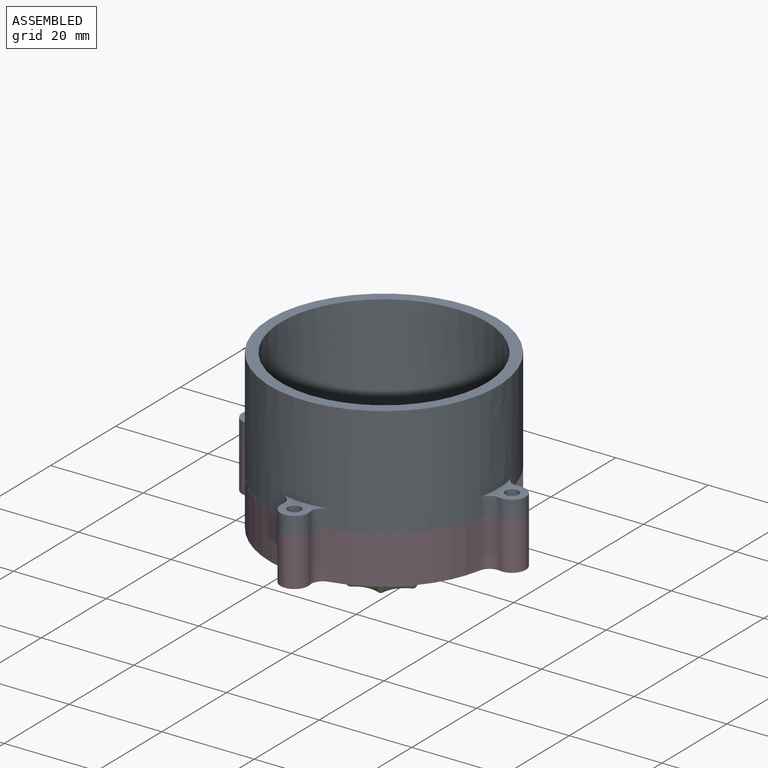
[diagram: assembled view]
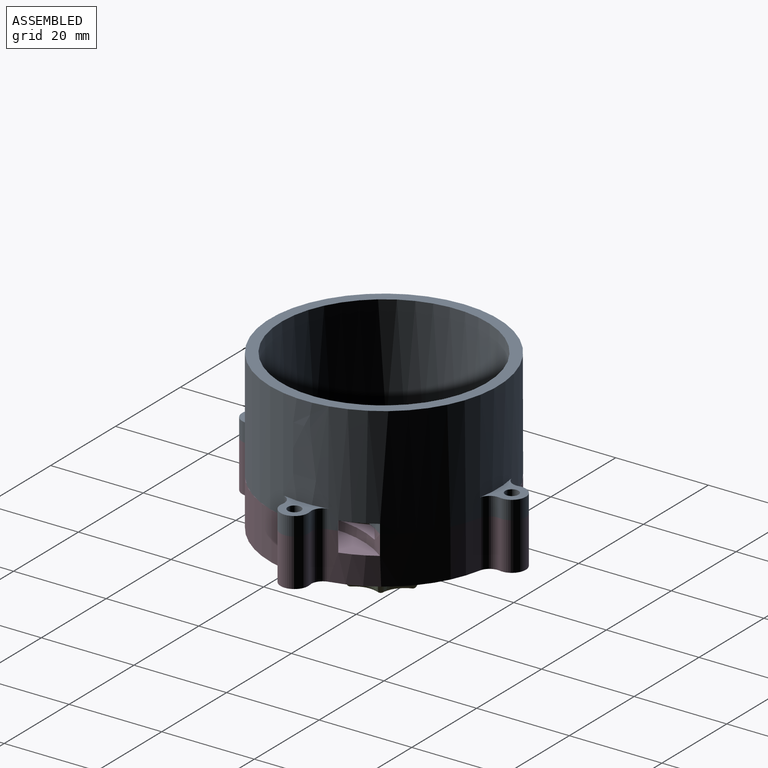
[diagram: assembled view, second angle]
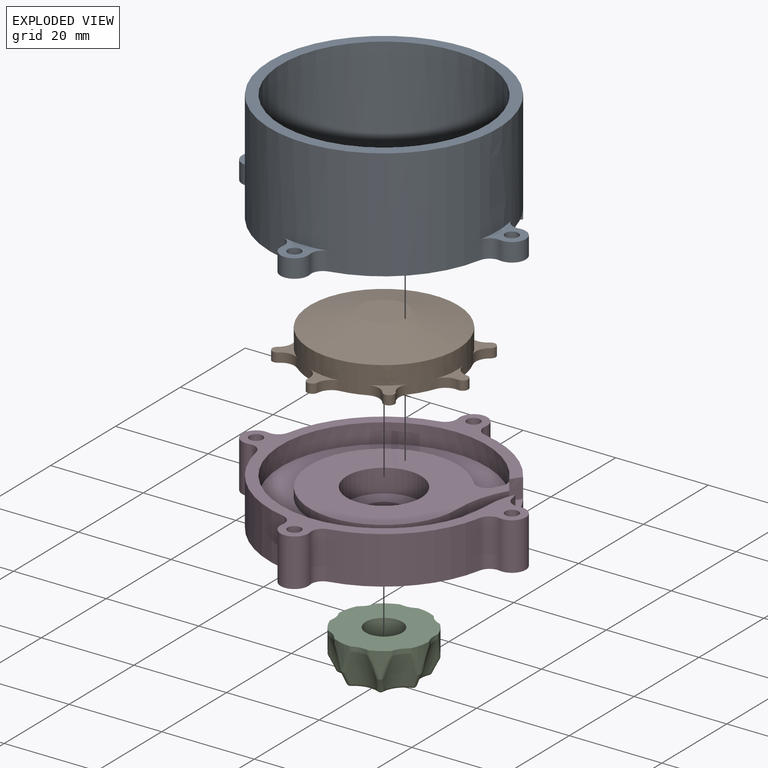
[diagram: exploded view]
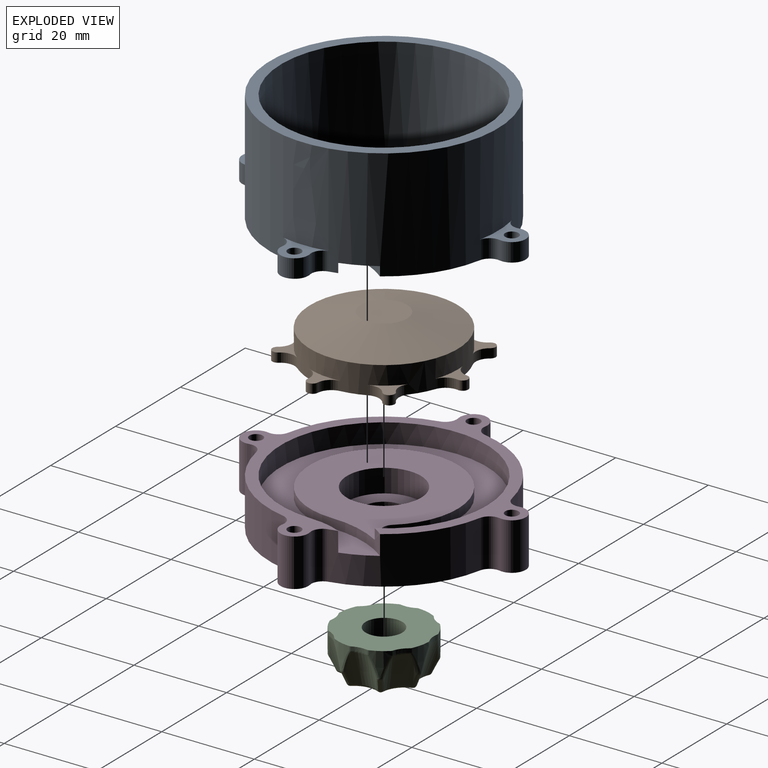
[diagram: exploded view, second angle]
ASSEMBLY  parts=4 mates=7
PART A: 40 faces, bbox 61.2x61.2x24 mm
  f0: plane 9.8x6.49mm, normal (0,0,1), area 27.2mm2, adj f3,f13,f19,f22,f23
  f1: plane 9.8x6.49mm, normal (0,0,1), area 27.2mm2, adj f4,f5,f6,f13,f20
  f2: plane 9.8x6.49mm, normal (0,0,1), area 27.2mm2, adj f10,f11,f12,f21,f32
  f3: cylinder r=2.5mm len=4mm, axis (0,0,-1), area 15.6mm2, adj f0,f13,f23,f25
  f4: cylinder r=2.5mm len=4mm, axis (0,0,-1), area 15.6mm2, adj f1,f5,f13,f25
  f5: cylinder r=3mm len=6mm, axis (0,0,-1), area 42.3mm2, adj f1,f4,f6,f25
  f6: cylinder r=2.5mm len=4mm, axis (0,0,-1), area 15.6mm2, adj f1,f5,f13,f25
  f7: cylinder r=2.5mm len=4mm, axis (0,0,-1), area 15.6mm2, adj f8,f13,f25,f27
  f8: cylinder r=3mm len=6mm, axis (0,0,-1), area 42.3mm2, adj f7,f9,f25,f27
  f9: cylinder r=2.5mm len=4mm, axis (0,0,-1), area 15.6mm2, adj f8,f13,f25,f27
  f10: cylinder r=2.5mm len=4mm, axis (0,0,-1), area 15.6mm2, adj f2,f11,f13,f25
  f11: cylinder r=3mm len=6mm, axis (0,0,-1), area 42.3mm2, adj f2,f10,f12,f25
  f12: cylinder r=2.5mm len=4mm, axis (0,0,-1), area 15.6mm2, adj f2,f11,f13,f25
  f13: cylinder r=24.62mm len=49.23mm, axis (0,0,-1), area 3341.6mm2, adj f0,f1,f3,f4,f6,f7,f9,f10
  f14: cylinder r=15.97mm len=6.7mm, axis (0,0,-1), area 13.8mm2, adj f13,f15,f25,f28
  f15: cylinder r=22.22mm len=44.43mm, axis (0,0,-1), area 2713.7mm2, adj f14,f25,f28,f31,f33,f34,f35,f36
  f16: cylinder r=24.62mm len=7.97mm, axis (0,0,-1), area 34.4mm2, adj f25,f30,f34,f38
  f17: cylinder r=15.97mm len=6.53mm, axis (0,0,-1), area 18.4mm2, adj f25,f26,f28,f29,f30,f38
  f18: cylinder r=22.22mm len=9.29mm, axis (0,0,-1), area 20.6mm2, adj f13,f25,f28,f29
  f19: cylinder r=2.5mm len=4mm, axis (0,0,-1), area 15.6mm2, adj f0,f13,f23,f25
  f20: cylinder r=1.44mm len=4mm, axis (0,0,-1), area 36.1mm2, adj f1,f25
  f21: cylinder r=1.44mm len=4mm, axis (0,0,-1), area 36.1mm2, adj f2,f25
  f22: cylinder r=1.44mm len=4mm, axis (0,0,-1), area 36.1mm2, adj f0,f25
  f23: cylinder r=3mm len=6mm, axis (0,0,-1), area 42.3mm2, adj f0,f3,f19,f25
  f24: cylinder r=1.44mm len=4mm, axis (0,0,-1), area 36.1mm2, adj f25,f27
  f25: plane 61.23x61.23mm, normal (0,0,-1), area 461.6mm2, adj f3,f4,f5,f6,f7,f8,f9,f10
  f26: cylinder r=22.22mm len=7.87mm, axis (0,0,-1), area 12.7mm2, adj f17,f28,f36,f37,f38,f39
  f27: plane 9.8x6.49mm, normal (0,0,1), area 27.2mm2, adj f7,f8,f9,f13,f24
  f28: plane 24.58x8.29mm, normal (0,0,-1), area 114mm2, adj f13,f14,f15,f17,f18,f26,f29,f36
  f29: cylinder r=0.5mm len=2mm, axis (0,0,-1), area 2.7mm2, adj f17,f18,f25,f28
  f30: cylinder r=0.5mm len=4.05mm, axis (0,0,1), area 1.4mm2, adj f16,f17,f25,f38
  f31: extruded ~24.89x20.17mm, area 368.8mm2, adj f15,f33,f35,f38,f39
  f32: extruded ~20x9.8mm, area 197.4mm2, adj f2,f13,f33
  f33: plane 49.23x49.23mm, normal (0,0,1), area 353.1mm2, adj f13,f15,f31,f32
  f34: cylinder r=2.4mm len=12.1mm, axis (0,0,-1), area 30.2mm2, adj f15,f16,f25,f38
  f35: cone r=6mm half-angle=45deg, axis (0,0,1), area 15.6mm2, adj f15,f31,f37,f39
  f36: cone r=6mm half-angle=45deg, axis (0,0,-1), area 5.7mm2, adj f15,f26,f28,f37
  f37: torus R=5.57mm, axis (0,0,-1), area 3.4mm2, adj f15,f26,f35,f36,f39
  f38: bspline ~17.19x11.06mm, area 129.4mm2, adj f15,f16,f17,f26,f30,f31,f34,f39
  f39: bspline ~21.43x19.96mm, area 57.3mm2, adj f26,f31,f35,f37,f38
PART B: 40 faces, bbox 40x40x9 mm
  f0: cylinder r=4mm len=8mm, axis (0,0,-1), area 124mm2, adj f34,f37,f38
  f1: plane 6.05x6.05mm, normal (0,0,1), area 11.8mm2, adj f12,f13,f14,f30
  f2: plane 7.23x4.44mm, normal (0,0,1), area 11.8mm2, adj f15,f16,f17,f30
  f3: plane 6.05x6.05mm, normal (0,0,1), area 11.8mm2, adj f18,f19,f20,f30
  f4: plane 7.23x4.44mm, normal (0,0,1), area 11.8mm2, adj f21,f22,f23,f30
  f5: plane 6.05x6.05mm, normal (0,0,1), area 11.8mm2, adj f24,f25,f26,f30
  f6: plane 7.23x4.44mm, normal (0,0,1), area 11.8mm2, adj f27,f28,f29,f30
  f7: plane 7.23x4.44mm, normal (0,0,1), area 11.8mm2, adj f9,f10,f11,f35
  f8: cylinder r=3.12mm len=3.96mm, axis (0,0,-1), area 8.7mm2, adj f30,f32,f33,f34
  f9: cylinder r=3.12mm len=3.19mm, axis (0,0,-1), area 8.7mm2, adj f7,f10,f30,f34
  f10: cylinder r=1.2mm len=2.4mm, axis (0,0,-1), area 7.8mm2, adj f7,f9,f11,f34
  f11: cylinder r=3.12mm len=3.19mm, axis (0,0,-1), area 8.7mm2, adj f7,f10,f30,f34
  f12: cylinder r=3.12mm len=3.96mm, axis (0,0,-1), area 8.7mm2, adj f1,f13,f30,f34
  f13: cylinder r=1.2mm len=2.09mm, axis (0,0,-1), area 7.8mm2, adj f1,f12,f14,f34
  f14: cylinder r=3.12mm len=3.96mm, axis (0,0,-1), area 8.7mm2, adj f1,f13,f30,f34
  f15: cylinder r=3.12mm len=3.19mm, axis (0,0,-1), area 8.7mm2, adj f2,f16,f30,f34
  f16: cylinder r=1.2mm len=2.4mm, axis (0,0,-1), area 7.8mm2, adj f2,f15,f17,f34
  f17: cylinder r=3.12mm len=3.19mm, axis (0,0,-1), area 8.7mm2, adj f2,f16,f30,f34
  f18: cylinder r=3.12mm len=3.96mm, axis (0,0,-1), area 8.7mm2, adj f3,f19,f30,f34
  f19: cylinder r=1.2mm len=2.09mm, axis (0,0,-1), area 7.8mm2, adj f3,f18,f20,f34
  f20: cylinder r=3.12mm len=3.96mm, axis (0,0,-1), area 8.7mm2, adj f3,f19,f30,f34
  f21: cylinder r=3.12mm len=3.19mm, axis (0,0,-1), area 8.7mm2, adj f4,f22,f30,f34
  f22: cylinder r=1.2mm len=2.4mm, axis (0,0,-1), area 7.8mm2, adj f4,f21,f23,f34
  f23: cylinder r=3.12mm len=3.19mm, axis (0,0,-1), area 8.7mm2, adj f4,f22,f30,f34
  f24: cylinder r=3.12mm len=3.96mm, axis (0,0,-1), area 8.7mm2, adj f5,f25,f30,f34
  f25: cylinder r=1.2mm len=2.09mm, axis (0,0,-1), area 7.8mm2, adj f5,f24,f26,f34
  f26: cylinder r=3.12mm len=3.96mm, axis (0,0,-1), area 8.7mm2, adj f5,f25,f30,f34
  f27: cylinder r=3.12mm len=3.19mm, axis (0,0,-1), area 8.7mm2, adj f6,f28,f30,f34
  f28: cylinder r=1.2mm len=2.4mm, axis (0,0,-1), area 7.8mm2, adj f6,f27,f29,f34
  f29: cylinder r=3.12mm len=3.19mm, axis (0,0,-1), area 8.7mm2, adj f6,f28,f30,f34
  f30: cylinder r=15.97mm len=31.93mm, axis (0,0,-1), area 456.1mm2, adj f1,f2,f3,f4,f5,f6,f8,f9
  f31: cylinder r=3.12mm len=3.96mm, axis (0,0,-1), area 8.7mm2, adj f30,f32,f33,f34
  f32: cylinder r=1.2mm len=2.09mm, axis (0,0,-1), area 7.8mm2, adj f8,f31,f33,f34
  f33: plane 6.05x6.05mm, normal (0,0,1), area 11.8mm2, adj f8,f30,f31,f32
  f34: plane 39.99x39.99mm, normal (0,0,-1), area 852mm2, adj f0,f8,f9,f10,f11,f12,f13,f14
  f35: extruded ~7.23x4mm, area 29.2mm2, adj f7,f30,f36
  f36: cone r=5mm half-angle=74.7deg, axis (0,0,-1), area 743.3mm2, adj f30,f35,f39
  f37: plane 7x6.4mm, normal (-1,0,0), area 44.8mm2, adj f0,f34,f38
  f38: plane 8x6.4mm, normal (0,0,-1), area 43.1mm2, adj f0,f37
  f39: plane 10x10mm, normal (0,0,1), area 78.5mm2, adj f36
PART C: 116 faces, bbox 21x21x9 mm
  f0: cylinder r=10mm len=5.39mm, axis (0,0,-1), area 12.2mm2, adj f26,f96,f105,f111,f114
  f1: cylinder r=10mm len=5.39mm, axis (0,0,-1), area 12.2mm2, adj f26,f91,f101,f107,f108
  f2: cylinder r=5mm len=7.47mm, axis (0.31,0,-0.95), area 39.9mm2, adj f78,f79,f89,f90,f100,f101
  f3: cylinder r=5mm len=7.47mm, axis (0,-0.31,-0.95), area 39.9mm2, adj f86,f87,f97,f98,f105,f106
  f4: cylinder r=10mm len=5.39mm, axis (0,0,-1), area 12.2mm2, adj f26,f60,f74,f85,f86
  f5: cylinder r=5mm len=7.47mm, axis (-0.22,-0.22,-0.95), area 39.9mm2, adj f61,f62,f74,f75,f87,f88
  f6: cylinder r=10mm len=5.39mm, axis (0,0,-1), area 12.2mm2, adj f26,f44,f45,f62,f63
  f7: cylinder r=5mm len=7.47mm, axis (-0.31,0,-0.95), area 39.9mm2, adj f46,f47,f63,f64,f75,f76
  f8: cylinder r=10mm len=5.39mm, axis (0,0,-1), area 12.2mm2, adj f26,f31,f32,f47,f48
  f9: cylinder r=5mm len=7.47mm, axis (-0.22,0.22,-0.95), area 39.9mm2, adj f33,f34,f48,f49,f64,f65
  f10: cylinder r=10mm len=5.39mm, axis (0,0,-1), area 12.2mm2, adj f26,f27,f28,f34,f35
  f11: cylinder r=5mm len=7.47mm, axis (0,0.31,-0.95), area 39.9mm2, adj f35,f36,f49,f50,f66,f67
  f12: cylinder r=10mm len=5.39mm, axis (0,0,-1), area 12.2mm2, adj f26,f37,f38,f50,f51
  f13: cylinder r=5mm len=7.47mm, axis (0.22,0.22,-0.95), area 39.9mm2, adj f51,f52,f67,f68,f77,f78
  f14: cylinder r=10mm len=5.39mm, axis (0,0,-1), area 12.2mm2, adj f26,f53,f68,f79,f80
  f15: cylinder r=3.95mm len=8.2mm, axis (0,0,-1), area 203.5mm2, adj f26,f115
  f16: plane 14.41x14.41mm, normal (0,0,1), area 73mm2, adj f65,f66,f76,f77,f88,f89,f98,f99
  f17: cylinder r=5mm len=7.47mm, axis (0.22,-0.22,-0.95), area 39.9mm2, adj f99,f100,f106,f107,f111,f112
  f18: extruded ~2.2x2.2mm, area 2.8mm2, adj f26,f108,f112,f114
  f19: extruded ~3.11x0.88mm, area 2.8mm2, adj f26,f85,f96,f97
  f20: extruded ~2.2x2.2mm, area 2.8mm2, adj f26,f44,f60,f61
  f21: extruded ~3.11x0.88mm, area 2.8mm2, adj f26,f31,f45,f46
  f22: extruded ~2.2x2.2mm, area 2.8mm2, adj f26,f27,f32,f33
  f23: extruded ~3.11x0.88mm, area 2.8mm2, adj f26,f28,f36,f37
  f24: extruded ~2.2x2.2mm, area 2.8mm2, adj f26,f38,f52,f53
  f25: extruded ~3.11x0.88mm, area 2.8mm2, adj f26,f80,f90,f91
  f26: plane 19.64x19.64mm, normal (0,0,-1), area 256mm2, adj f0,f1,f4,f6,f8,f10,f12,f14
  f27: cylinder r=0.8mm len=0.88mm, axis (0,0,1), area 0.4mm2, adj f10,f22,f26,f29
  f28: cylinder r=0.8mm len=0.88mm, axis (0,0,1), area 0.4mm2, adj f10,f23,f26,f30
  f29: sphere r=0.8mm, area 0.1mm2, adj f27,f33,f34
  f30: sphere r=0.8mm, area 0.1mm2, adj f28,f35,f36
  f31: cylinder r=0.8mm len=0.88mm, axis (0,0,1), area 0.4mm2, adj f8,f21,f26,f39
  f32: cylinder r=0.8mm len=0.88mm, axis (0,0,1), area 0.4mm2, adj f8,f22,f26,f40
  f33: bspline ~3.38x2.97mm, area 0.8mm2, adj f9,f22,f29,f40
  f34: bspline ~5.66x2.31mm, area 3.3mm2, adj f9,f10,f29,f41
  f35: bspline ~5.49x2.54mm, area 3.3mm2, adj f10,f11,f30,f41
  f36: bspline ~4.48x0.74mm, area 0.8mm2, adj f11,f23,f30,f42
  f37: cylinder r=0.8mm len=0.88mm, axis (0,0,1), area 0.4mm2, adj f12,f23,f26,f42
  f38: cylinder r=0.8mm len=0.88mm, axis (0,0,1), area 0.4mm2, adj f12,f24,f26,f43
  f39: sphere r=0.8mm, area 0.1mm2, adj f31,f46,f47
  f40: sphere r=0.8mm, area 0.1mm2, adj f32,f33,f48
  f41: sphere r=0.8mm, area 0.2mm2, adj f34,f35,f49
  f42: sphere r=0.8mm, area 0.1mm2, adj f36,f37,f50
  f43: sphere r=0.8mm, area 0.1mm2, adj f38,f51,f52
  f44: cylinder r=0.8mm len=0.88mm, axis (0,0,1), area 0.4mm2, adj f6,f20,f26,f54
  f45: cylinder r=0.8mm len=0.88mm, axis (0,0,1), area 0.4mm2, adj f6,f21,f26,f55
  f46: bspline ~4.48x0.74mm, area 0.8mm2, adj f7,f21,f39,f55
  f47: bspline ~5.66x2.63mm, area 3.3mm2, adj f7,f8,f39,f56
  f48: bspline ~5.49x2.22mm, area 3.3mm2, adj f8,f9,f40,f56
  f49: bspline ~2.96x1.83mm, area 4.8mm2, adj f9,f11,f41,f57
  f50: bspline ~5.66x2.63mm, area 3.3mm2, adj f11,f12,f42,f58
  f51: bspline ~5.49x2.22mm, area 3.3mm2, adj f12,f13,f43,f58
  f52: bspline ~3.38x2.97mm, area 0.8mm2, adj f13,f24,f43,f59
  f53: cylinder r=0.8mm len=0.88mm, axis (0,0,1), area 0.4mm2, adj f14,f24,f26,f59
  f54: sphere r=0.8mm, area 0.1mm2, adj f44,f61,f62
  f55: sphere r=0.8mm, area 0.1mm2, adj f45,f46,f63
  f56: sphere r=0.8mm, area 0.2mm2, adj f47,f48,f64
  f57: sphere r=0.8mm, area 1.1mm2, adj f49,f65,f66
  f58: sphere r=0.8mm, area 0.2mm2, adj f50,f51,f67
  f59: sphere r=0.8mm, area 0.1mm2, adj f52,f53,f68
  f60: cylinder r=0.8mm len=0.88mm, axis (0,0,1), area 0.4mm2, adj f4,f20,f26,f69
  f61: bspline ~3.38x2.97mm, area 0.8mm2, adj f5,f20,f54,f69
  f62: bspline ~5.66x2.31mm, area 3.3mm2, adj f5,f6,f54,f70
  f63: bspline ~5.49x2.54mm, area 3.3mm2, adj f6,f7,f55,f70
  f64: bspline ~2.96x1.83mm, area 4.8mm2, adj f7,f9,f56,f71
  f65: bspline ~4.39x4.39mm, area 5.9mm2, adj f9,f16,f57,f71
  f66: bspline ~5.97x1.52mm, area 5.9mm2, adj f11,f16,f57,f72
  f67: bspline ~2.96x1.83mm, area 4.8mm2, adj f11,f13,f58,f72
  f68: bspline ~5.66x2.31mm, area 3.3mm2, adj f13,f14,f59,f73
  f69: sphere r=0.8mm, area 0.1mm2, adj f60,f61,f74
  f70: sphere r=0.8mm, area 0.2mm2, adj f62,f63,f75
  f71: sphere r=0.8mm, area 1.1mm2, adj f64,f65,f76
  f72: sphere r=0.8mm, area 0.9mm2, adj f66,f67,f77
  f73: sphere r=0.8mm, area 0.4mm2, adj f68,f78,f79
  f74: bspline ~5.49x2.22mm, area 3.3mm2, adj f4,f5,f69,f81
  f75: bspline ~2.96x1.83mm, area 4.8mm2, adj f5,f7,f70,f82
  f76: bspline ~5.97x1.52mm, area 5.9mm2, adj f7,f16,f71,f82
  f77: bspline ~4.39x4.39mm, area 5.9mm2, adj f13,f16,f72,f83
  f78: bspline ~2.96x1.83mm, area 4.8mm2, adj f2,f13,f73,f83
  f79: bspline ~5.49x2.54mm, area 3.3mm2, adj f2,f14,f73,f84
  f80: cylinder r=0.8mm len=0.88mm, axis (0,0,1), area 0.4mm2, adj f14,f25,f26,f84
  f81: sphere r=0.8mm, area 0.2mm2, adj f74,f86,f87
  f82: sphere r=0.8mm, area 0.9mm2, adj f75,f76,f88
  f83: sphere r=0.8mm, area 0.8mm2, adj f77,f78,f89
  f84: sphere r=0.8mm, area 0.1mm2, adj f79,f80,f90
  f85: cylinder r=0.8mm len=0.88mm, axis (0,0,1), area 0.4mm2, adj f4,f19,f26,f92
  f86: bspline ~5.66x2.63mm, area 3.3mm2, adj f3,f4,f81,f92
  f87: bspline ~2.96x1.83mm, area 4.8mm2, adj f3,f5,f81,f93
  f88: bspline ~4.39x4.39mm, area 5.9mm2, adj f5,f16,f82,f93
  f89: bspline ~5.97x1.52mm, area 5.9mm2, adj f2,f16,f83,f94
  f90: bspline ~4.48x0.74mm, area 0.8mm2, adj f2,f25,f84,f95
  f91: cylinder r=0.8mm len=0.88mm, axis (0,0,1), area 0.4mm2, adj f1,f25,f26,f95
  f92: sphere r=0.8mm, area 0.1mm2, adj f85,f86,f97
  f93: sphere r=0.8mm, area 0.9mm2, adj f87,f88,f98
  f94: sphere r=0.8mm, area 0.8mm2, adj f89,f99,f100
  f95: sphere r=0.8mm, area 0.1mm2, adj f90,f91,f101
  f96: cylinder r=0.8mm len=0.88mm, axis (0,0,1), area 0.4mm2, adj f0,f19,f26,f102
  f97: bspline ~4.48x0.74mm, area 0.8mm2, adj f3,f19,f92,f102
  f98: bspline ~5.97x1.52mm, area 5.9mm2, adj f3,f16,f93,f103
  f99: bspline ~4.39x4.39mm, area 5.9mm2, adj f16,f17,f94,f103
  f100: bspline ~2.96x1.83mm, area 4.8mm2, adj f2,f17,f94,f104
  f101: bspline ~5.66x2.63mm, area 3.3mm2, adj f1,f2,f95,f104
  f102: sphere r=0.8mm, area 0.1mm2, adj f96,f97,f105
  f103: sphere r=0.8mm, area 0.9mm2, adj f98,f99,f106
  f104: sphere r=0.8mm, area 0.4mm2, adj f100,f101,f107
  f105: bspline ~5.49x2.54mm, area 3.3mm2, adj f0,f3,f102,f109
  f106: bspline ~2.96x1.83mm, area 4.8mm2, adj f3,f17,f103,f109
  f107: bspline ~5.49x2.22mm, area 3.3mm2, adj f1,f17,f104,f110
  f108: cylinder r=0.8mm len=0.88mm, axis (0,0,1), area 0.4mm2, adj f1,f18,f26,f110
  f109: sphere r=0.8mm, area 0.2mm2, adj f105,f106,f111
  f110: sphere r=0.8mm, area 0.1mm2, adj f107,f108,f112
  f111: bspline ~5.66x2.31mm, area 3.3mm2, adj f0,f17,f109,f113
  f112: bspline ~3.38x2.97mm, area 0.8mm2, adj f17,f18,f110,f113
  f113: sphere r=0.8mm, area 0.1mm2, adj f111,f112,f114
  f114: cylinder r=0.8mm len=0.88mm, axis (0,0,1), area 0.4mm2, adj f0,f18,f26,f113
  f115: torus R=4.75mm, axis (0,0,1), area 33.5mm2, adj f15,f16
PART D: 34 faces, bbox 61.2x61.2x10.3 mm
  f0: cylinder r=4.5mm len=9mm, axis (0,0,-1), area 84.8mm2, adj f7,f32
  f1: plane 35.06x31.93mm, normal (0,0,1), area 625.3mm2, adj f6,f8,f10,f11,f30,f31,f33
  f2: cylinder r=24.62mm len=19.22mm, axis (0,0,-1), area 295.2mm2, adj f7,f22,f25,f29
  f3: cylinder r=24.62mm len=19.22mm, axis (0,0,-1), area 295.2mm2, adj f7,f18,f21,f29
  f4: cylinder r=24.62mm len=19.22mm, axis (0,0,-1), area 295.2mm2, adj f7,f14,f17,f29
  f5: cylinder r=24.62mm len=19.22mm, axis (0,0,-1), area 263.1mm2, adj f7,f9,f10,f12,f13,f26,f29
  f6: cylinder r=22.22mm len=44.43mm, axis (0,0,1), area 533.7mm2, adj f1,f9,f10,f12,f29,f30
  f7: plane 61.23x61.23mm, normal (0,0,-1), area 1949.1mm2, adj f0,f2,f3,f4,f5,f13,f14,f15
  f8: cylinder r=15.97mm len=31.93mm, axis (0,0,1), area 178mm2, adj f1,f9,f10,f31
  f9: plane 45.91x44.43mm, normal (0,0,1), area 745mm2, adj f5,f6,f8,f10,f11,f12,f30,f31
  f10: cylinder r=22.22mm len=13.53mm, axis (0,0,-1), area 35mm2, adj f1,f5,f6,f8,f9,f29
  f11: cylinder r=24.62mm len=2mm, axis (0,0,-1), area 2.8mm2, adj f1,f9,f30,f31
  f12: cylinder r=15.97mm len=6.7mm, axis (0,0,1), area 29.4mm2, adj f5,f6,f9,f29
  f13: cylinder r=2.5mm len=10.25mm, axis (0,0,-1), area 40mm2, adj f5,f7,f15,f29
  f14: cylinder r=2.5mm len=10.25mm, axis (0,0,-1), area 40mm2, adj f4,f7,f15,f29
  f15: cylinder r=3mm len=10.25mm, axis (0,0,-1), area 108.3mm2, adj f7,f13,f14,f29
  f16: cylinder r=1.44mm len=10.25mm, axis (0,0,-1), area 92.6mm2, adj f7,f29
  f17: cylinder r=2.5mm len=10.25mm, axis (0,0,-1), area 40mm2, adj f4,f7,f19,f29
  f18: cylinder r=2.5mm len=10.25mm, axis (0,0,-1), area 40mm2, adj f3,f7,f19,f29
  f19: cylinder r=3mm len=10.25mm, axis (0,0,-1), area 108.3mm2, adj f7,f17,f18,f29
  f20: cylinder r=1.44mm len=10.25mm, axis (0,0,-1), area 92.6mm2, adj f7,f29
  f21: cylinder r=2.5mm len=10.25mm, axis (0,0,-1), area 40mm2, adj f3,f7,f23,f29
  f22: cylinder r=2.5mm len=10.25mm, axis (0,0,-1), area 40mm2, adj f2,f7,f23,f29
  f23: cylinder r=3mm len=10.25mm, axis (0,0,-1), area 108.3mm2, adj f7,f21,f22,f29
  f24: cylinder r=1.44mm len=10.25mm, axis (0,0,-1), area 92.6mm2, adj f7,f29
  f25: cylinder r=2.5mm len=10.25mm, axis (0,0,-1), area 40mm2, adj f2,f7,f27,f29
  f26: cylinder r=2.5mm len=10.25mm, axis (0,0,-1), area 40mm2, adj f5,f7,f27,f29
  f27: cylinder r=3mm len=10.25mm, axis (0,0,-1), area 108.3mm2, adj f7,f25,f26,f29
  f28: cylinder r=1.44mm len=10.25mm, axis (0,0,-1), area 92.6mm2, adj f7,f29
  f29: plane 61.23x61.23mm, normal (0,0,1), area 441.3mm2, adj f2,f3,f4,f5,f6,f10,f12,f13
  f30: cylinder r=2.4mm len=2.8mm, axis (0,0,-1), area 6mm2, adj f1,f6,f9,f11
  f31: cylinder r=2.4mm len=3.98mm, axis (0,0,1), area 9.5mm2, adj f1,f8,f9,f11
  f32: plane 16x16mm, normal (0,0,1), area 137.4mm2, adj f0,f33
  f33: cylinder r=8mm len=16mm, axis (0,0,1), area 251.3mm2, adj f1,f32
PLACE A t=(0,0,-2.5)mm
PLACE B rot(axis=(0,0,-1),52.3deg) t=(0,0,-2.5)mm
PLACE C rot(axis=(0.45,-0.89,0),180deg) t=(0,0,-3.5)mm
PLACE D t=(0,0,-2.5)mm fixed
MATE planar A.f20 <-> D.f29  axis (0,0,-1) through (-27.62,0,7.75)mm
MATE cylindrical A.f5 <-> D.f19  axis (0,0,-1) through (-27.62,0,9.75)mm
MATE cylindrical C.f15 <-> D.f0  axis (0,0,1) through (0,0,-2.5)mm
MATE cylindrical A.f8 <-> D.f23  axis (0,0,-1) through (0,-27.62,9.75)mm
MATE planar C.f15 <-> D.f0  axis (0,0,1) through (0,0,-2.5)mm
MATE cylindrical D.f0 <-> B.f30  axis (0,0,-1) through (0,0,-1)mm
MATE planar B.f34 <-> D.f1  axis (0,0,-1) through (0.02,-0.02,5.5)mm
